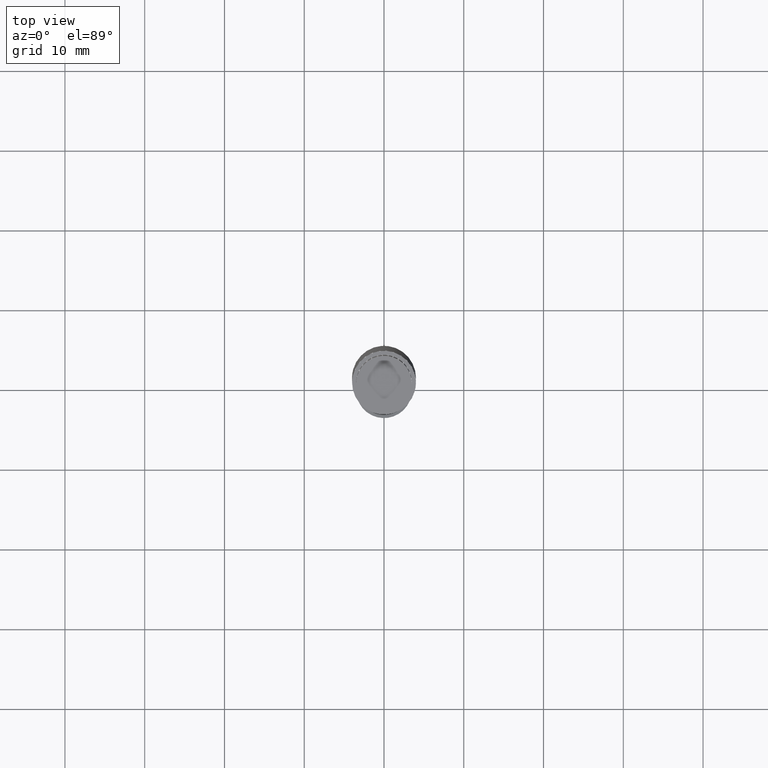
[diagram: clean part render]
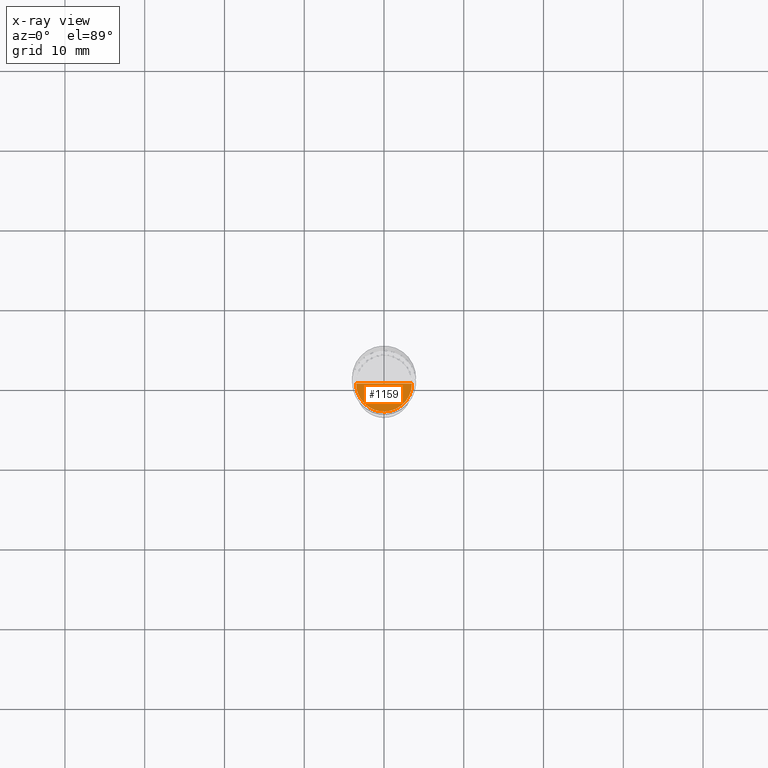
[diagram: x-ray — body ghosted, one internal face saturated and labeled with its STEP entity id]
A machine part, top view, then the same camera in x-ray: the body is ghosted and one INTERNAL B-rep face — a face not visible from any outside direction — is saturated and labeled: STEP entity #1159.
In plain terms, the highlighted face is a freeform B-spline surface patch.
Its self-contained STEP definition (entity closure, byte-faithful):
#998=CARTESIAN_POINT('',(3.5,0.0,-7.0));
#1002=CARTESIAN_POINT('',(-3.5,0.0,-7.0));
#1003=CARTESIAN_POINT('',(0.0,0.0,-7.0));
#1007=CARTESIAN_POINT('',(-3.5,-3.5,-7.0));
#1008=CARTESIAN_POINT('',(0.0,-3.5,-7.0));
#1009=CARTESIAN_POINT('',(3.5,-3.5,-7.0));
#1144=(
BOUNDED_SURFACE()
B_SPLINE_SURFACE(1,2,(
(#1002,#1007,#1008,#1009,#998),
(#1003,#1003,#1003,#1003,#1003)
), .UNSPECIFIED.,.F.,.F.,.F.)
B_SPLINE_SURFACE_WITH_KNOTS((2,2),(3,2,3),(
0.0,1.0),(
0.0,0.5,1.0), .UNSPECIFIED.)
GEOMETRIC_REPRESENTATION_ITEM()
RATIONAL_B_SPLINE_SURFACE(((1.0,0.707106781187,1.0,0.707106781187,1.0),
(1.0,0.707106781187,1.0,0.707106781187,1.0)
))
REPRESENTATION_ITEM('')
SURFACE()
);
#1145=(
BOUNDED_CURVE()
B_SPLINE_CURVE(2,(#998,#1009,#1008,#1007,#1002),.UNSPECIFIED.,.F.,.F.)
B_SPLINE_CURVE_WITH_KNOTS((3,2,3),
(0.0,0.5,1.0),.UNSPECIFIED.)
CURVE()
GEOMETRIC_REPRESENTATION_ITEM()
RATIONAL_B_SPLINE_CURVE((1.0,0.707106781187,1.0,0.707106781187,1.0))
REPRESENTATION_ITEM('')
);
#1146=(
BOUNDED_CURVE()
B_SPLINE_CURVE(1,(#1002,#1003),.UNSPECIFIED.,.F.,.F.)
B_SPLINE_CURVE_WITH_KNOTS((2,2),
(0.0,1.0),.UNSPECIFIED.)
CURVE()
GEOMETRIC_REPRESENTATION_ITEM()
RATIONAL_B_SPLINE_CURVE((1.0,1.0))
REPRESENTATION_ITEM('')
);
#1147=(
BOUNDED_CURVE()
B_SPLINE_CURVE(1,(#1003,#998),.UNSPECIFIED.,.F.,.F.)
B_SPLINE_CURVE_WITH_KNOTS((2,2),
(0.0,1.0),.UNSPECIFIED.)
CURVE()
GEOMETRIC_REPRESENTATION_ITEM()
RATIONAL_B_SPLINE_CURVE((1.0,1.0))
REPRESENTATION_ITEM('')
);
#1148=VERTEX_POINT('',#998);
#1149=VERTEX_POINT('',#1002);
#1150=VERTEX_POINT('',#1003);
#1151=EDGE_CURVE('',#1148,#1149,#1145,.T.);
#1152=EDGE_CURVE('',#1149,#1150,#1146,.T.);
#1153=EDGE_CURVE('',#1150,#1148,#1147,.T.);
#1154=ORIENTED_EDGE('',*,*,#1151,.T.);
#1155=ORIENTED_EDGE('',*,*,#1152,.T.);
#1156=ORIENTED_EDGE('',*,*,#1153,.T.);
#1157=EDGE_LOOP('',(#1154,#1155,#1156));
#1158=FACE_OUTER_BOUND('',#1157,.T.);
#1159=ADVANCED_FACE('',(#1158),#1144,.T.);